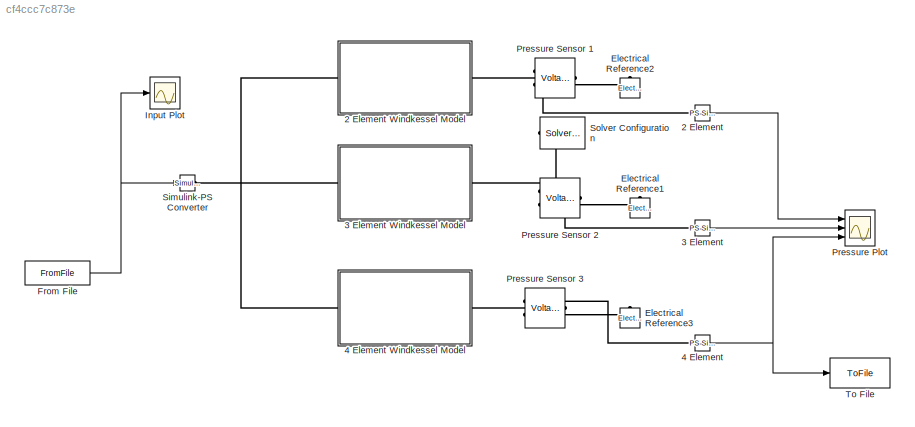
MODEL slx_cf4ccc7c873e
KIND model
CONFIG AbsTol = auto
CONFIG EnableMultiTasking = off
CONFIG FixedStep = 0.01
CONFIG MaxStep = auto
CONFIG MinStep = auto
CONFIG RelTol = 1e-3
CONFIG SampleTimeConstraint = Unconstrained
CONFIG Solver = ode4
CONFIG SolverName = ode4
CONFIG StartTime = 0.0
CONFIG StopTime = 16
BLOCK [Reference] 2 Element  REF=nesl_utility/PS-Simulink
Converter
  Ports = [0, 1, 0, 0, 0, 1]
  SourceBlock = nesl_utility/PS-Simulink\nConverter
  SourceProductBaseCode = SS
  SourceProductName = Simscape
  SourceType = PS-Simulink\nConverter
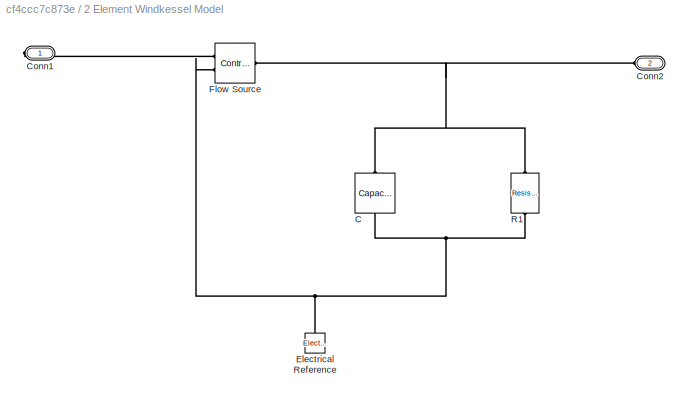
BLOCK [SubSystem] 2 Element Windkessel Model
  Ports = [0, 0, 0, 0, 0, 1, 1]
  RequestExecContextInheritance = off
BLOCK [Reference] 2 Element Windkessel Model/C  REF=ee_lib/Passive/Capacitor
  Ports = [0, 0, 0, 0, 0, 1, 1]
  SourceBlock = ee_lib/Passive/Capacitor
  SourceProductBaseCode = PS
  SourceProductName = Simscape Electrical
  SourceType = Capacitor
BLOCK [PMIOPort] 2 Element Windkessel Model/Conn1
  Side = Right
BLOCK [PMIOPort] 2 Element Windkessel Model/Conn2
  Port = 2
  Side = Left
BLOCK [Reference] 2 Element Windkessel Model/Electrical Reference  REF=fl_lib/Electrical/Electrical Elements/Electrical Reference
  Ports = [0, 0, 0, 0, 0, 1]
  SourceBlock = fl_lib/Electrical/Electrical Elements/Electrical Reference
  SourceProductBaseCode = SS
  SourceProductName = Simscape
  SourceType = Electrical Reference
BLOCK [Reference] 2 Element Windkessel Model/Flow Source  REF=fl_lib/Electrical/Electrical Sources/Controlled Current
Source
  Ports = [0, 0, 0, 0, 0, 1, 2]
  SourceBlock = fl_lib/Electrical/Electrical Sources/Controlled Current\nSource
  SourceProductBaseCode = SS
  SourceProductName = Simscape
  SourceType = Controlled Current\nSource
BLOCK [Reference] 2 Element Windkessel Model/R1  REF=fl_lib/Electrical/Electrical Elements/Resistor
  Ports = [0, 0, 0, 0, 0, 1, 1]
  SourceBlock = fl_lib/Electrical/Electrical Elements/Resistor
  SourceProductBaseCode = SS
  SourceProductName = Simscape
  SourceType = Resistor
BLOCK [Reference] 3 Element  REF=nesl_utility/PS-Simulink
Converter
  Ports = [0, 1, 0, 0, 0, 1]
  SourceBlock = nesl_utility/PS-Simulink\nConverter
  SourceProductBaseCode = SS
  SourceProductName = Simscape
  SourceType = PS-Simulink\nConverter
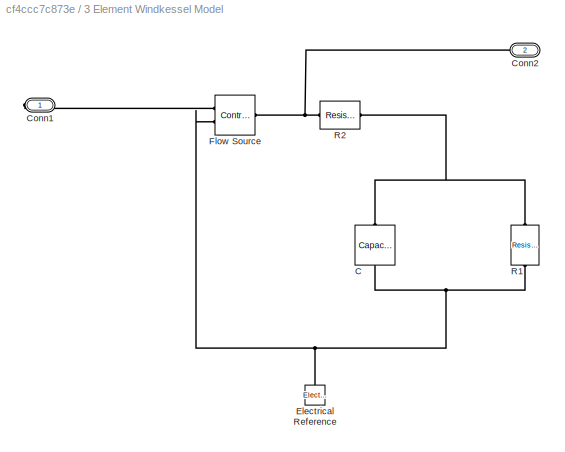
BLOCK [SubSystem] 3 Element Windkessel Model 
  Ports = [0, 0, 0, 0, 0, 1, 1]
  RequestExecContextInheritance = off
BLOCK [Reference] 3 Element Windkessel Model /C  REF=ee_lib/Passive/Capacitor
  Ports = [0, 0, 0, 0, 0, 1, 1]
  SourceBlock = ee_lib/Passive/Capacitor
  SourceProductBaseCode = PS
  SourceProductName = Simscape Electrical
  SourceType = Capacitor
BLOCK [PMIOPort] 3 Element Windkessel Model /Conn1
  Side = Right
BLOCK [PMIOPort] 3 Element Windkessel Model /Conn2
  Port = 2
  Side = Left
BLOCK [Reference] 3 Element Windkessel Model /Electrical Reference  REF=fl_lib/Electrical/Electrical Elements/Electrical Reference
  Ports = [0, 0, 0, 0, 0, 1]
  SourceBlock = fl_lib/Electrical/Electrical Elements/Electrical Reference
  SourceProductBaseCode = SS
  SourceProductName = Simscape
  SourceType = Electrical Reference
BLOCK [Reference] 3 Element Windkessel Model /Flow Source  REF=fl_lib/Electrical/Electrical Sources/Controlled Current
Source
  Ports = [0, 0, 0, 0, 0, 1, 2]
  SourceBlock = fl_lib/Electrical/Electrical Sources/Controlled Current\nSource
  SourceProductBaseCode = SS
  SourceProductName = Simscape
  SourceType = Controlled Current\nSource
BLOCK [Reference] 3 Element Windkessel Model /R1  REF=fl_lib/Electrical/Electrical Elements/Resistor
  Ports = [0, 0, 0, 0, 0, 1, 1]
  SourceBlock = fl_lib/Electrical/Electrical Elements/Resistor
  SourceProductBaseCode = SS
  SourceProductName = Simscape
  SourceType = Resistor
BLOCK [Reference] 3 Element Windkessel Model /R2  REF=fl_lib/Electrical/Electrical Elements/Resistor
  Ports = [0, 0, 0, 0, 0, 1, 1]
  SourceBlock = fl_lib/Electrical/Electrical Elements/Resistor
  SourceProductBaseCode = SS
  SourceProductName = Simscape
  SourceType = Resistor
BLOCK [Reference] 4 Element  REF=nesl_utility/PS-Simulink
Converter
  Ports = [0, 1, 0, 0, 0, 1]
  SourceBlock = nesl_utility/PS-Simulink\nConverter
  SourceProductBaseCode = SS
  SourceProductName = Simscape
  SourceType = PS-Simulink\nConverter
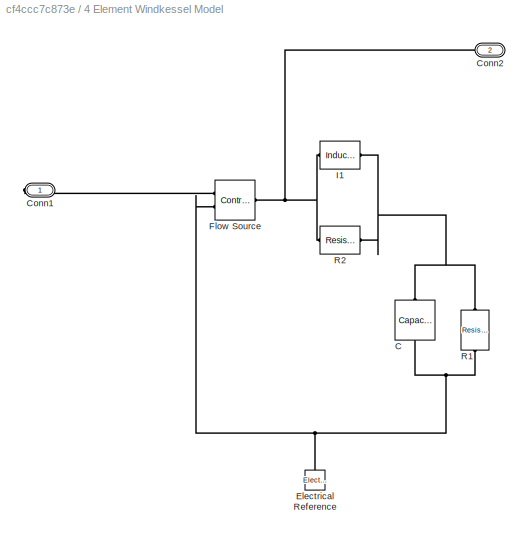
BLOCK [SubSystem] 4 Element Windkessel Model 
  Ports = [0, 0, 0, 0, 0, 1, 1]
  RequestExecContextInheritance = off
BLOCK [Reference] 4 Element Windkessel Model /C  REF=ee_lib/Passive/Capacitor
  Ports = [0, 0, 0, 0, 0, 1, 1]
  SourceBlock = ee_lib/Passive/Capacitor
  SourceProductBaseCode = PS
  SourceProductName = Simscape Electrical
  SourceType = Capacitor
BLOCK [PMIOPort] 4 Element Windkessel Model /Conn1
  Side = Right
BLOCK [PMIOPort] 4 Element Windkessel Model /Conn2
  Port = 2
  Side = Left
BLOCK [Reference] 4 Element Windkessel Model /Electrical Reference  REF=fl_lib/Electrical/Electrical Elements/Electrical Reference
  Ports = [0, 0, 0, 0, 0, 1]
  SourceBlock = fl_lib/Electrical/Electrical Elements/Electrical Reference
  SourceProductBaseCode = SS
  SourceProductName = Simscape
  SourceType = Electrical Reference
BLOCK [Reference] 4 Element Windkessel Model /Flow Source  REF=fl_lib/Electrical/Electrical Sources/Controlled Current
Source
  Ports = [0, 0, 0, 0, 0, 1, 2]
  SourceBlock = fl_lib/Electrical/Electrical Sources/Controlled Current\nSource
  SourceProductBaseCode = SS
  SourceProductName = Simscape
  SourceType = Controlled Current\nSource
BLOCK [Reference] 4 Element Windkessel Model /I1  REF=ee_lib/Passive/Inductor
  Ports = [0, 0, 0, 0, 0, 1, 1]
  SourceBlock = ee_lib/Passive/Inductor
  SourceProductBaseCode = PS
  SourceProductName = Simscape Electrical
  SourceType = Inductor
BLOCK [Reference] 4 Element Windkessel Model /R1  REF=fl_lib/Electrical/Electrical Elements/Resistor
  Ports = [0, 0, 0, 0, 0, 1, 1]
  SourceBlock = fl_lib/Electrical/Electrical Elements/Resistor
  SourceProductBaseCode = SS
  SourceProductName = Simscape
  SourceType = Resistor
BLOCK [Reference] 4 Element Windkessel Model /R2  REF=fl_lib/Electrical/Electrical Elements/Resistor
  Ports = [0, 0, 0, 0, 0, 1, 1]
  SourceBlock = fl_lib/Electrical/Electrical Elements/Resistor
  SourceProductBaseCode = SS
  SourceProductName = Simscape
  SourceType = Resistor
BLOCK [Reference] Electrical Reference1  REF=fl_lib/Electrical/Electrical Elements/Electrical Reference
  Ports = [0, 0, 0, 0, 0, 1]
  SourceBlock = fl_lib/Electrical/Electrical Elements/Electrical Reference
  SourceProductBaseCode = SS
  SourceProductName = Simscape
  SourceType = Electrical Reference
BLOCK [Reference] Electrical Reference2  REF=fl_lib/Electrical/Electrical Elements/Electrical Reference
  Ports = [0, 0, 0, 0, 0, 1]
  SourceBlock = fl_lib/Electrical/Electrical Elements/Electrical Reference
  SourceProductBaseCode = SS
  SourceProductName = Simscape
  SourceType = Electrical Reference
BLOCK [Reference] Electrical Reference3  REF=fl_lib/Electrical/Electrical Elements/Electrical Reference
  Ports = [0, 0, 0, 0, 0, 1]
  SourceBlock = fl_lib/Electrical/Electrical Elements/Electrical Reference
  SourceProductBaseCode = SS
  SourceProductName = Simscape
  SourceType = Electrical Reference
BLOCK [FromFile] From File
  FileName = inflow.mat
  SampleTime = 0
BLOCK [Scope] Input Plot
  Floating = off
  NumInputPorts = 1
  Ports = [1]
  ScopeSpecificationString = Simulink.scopes.TimeScopeBlockCfg('CurrentConfiguration', extmgr.ConfigurationSet(extmgr.Configuration('Core','General UI',true),extmgr.Configuration('Core','Source UI',true),extmgr.Configuration('Sources','WiredSimulink',true,'DataLoggingVariableName','ScopeData1'),extmgr.Configuration('Visuals','Time Domain',true,'SerializedDisplays',{struct('MinYLimReal','-62.5','MaxYLimReal','562.5','YLabelRea...<+1387ch>
BLOCK [Scope] Pressure Plot
  Floating = off
  NumInputPorts = 3
  Ports = [3]
  ScopeSpecificationString = Simulink.scopes.TimeScopeBlockCfg('CurrentConfiguration', extmgr.ConfigurationSet(extmgr.Configuration('Core','General UI',true),extmgr.Configuration('Core','Source UI',true),extmgr.Configuration('Sources','WiredSimulink',true),extmgr.Configuration('Visuals','Time Domain',true,'SerializedDisplays',{struct('MinYLimReal','-16.85355','MaxYLimReal','151.68192','YLabelReal','','MinYLimMag','0.00000','M...<+1727ch>
BLOCK [Reference] Pressure Sensor 1   REF=fl_lib/Electrical/Electrical Sensors/Voltage Sensor
  Ports = [0, 0, 0, 0, 0, 1, 2]
  SourceBlock = fl_lib/Electrical/Electrical Sensors/Voltage Sensor
  SourceProductBaseCode = SS
  SourceProductName = Simscape
  SourceType = Voltage Sensor
BLOCK [Reference] Pressure Sensor 2  REF=fl_lib/Electrical/Electrical Sensors/Voltage Sensor
  Ports = [0, 0, 0, 0, 0, 1, 2]
  SourceBlock = fl_lib/Electrical/Electrical Sensors/Voltage Sensor
  SourceProductBaseCode = SS
  SourceProductName = Simscape
  SourceType = Voltage Sensor
BLOCK [Reference] Pressure Sensor 3  REF=fl_lib/Electrical/Electrical Sensors/Voltage Sensor
  Ports = [0, 0, 0, 0, 0, 1, 2]
  SourceBlock = fl_lib/Electrical/Electrical Sensors/Voltage Sensor
  SourceProductBaseCode = SS
  SourceProductName = Simscape
  SourceType = Voltage Sensor
BLOCK [Reference] Simulink-PS Converter  REF=nesl_utility/Simulink-PS
Converter
  Ports = [1, 0, 0, 0, 0, 0, 1]
  SourceBlock = nesl_utility/Simulink-PS\nConverter
  SourceProductBaseCode = SS
  SourceProductName = Simscape
  SourceType = Simulink-PS\nConverter
BLOCK [Reference] Solver Configuration  REF=nesl_utility/Solver
Configuration
  Ports = [0, 0, 0, 0, 0, 0, 1]
  SourceBlock = nesl_utility/Solver\nConfiguration
  SourceProductBaseCode = SS
  SourceProductName = Simscape
  SourceType = Solver\nConfiguration
BLOCK [ToFile] To File
  Filename = Pressure.mat
  Ports = [1]
  SaveFormat = Timeseries
LINE 2 Element:1 -> Pressure Plot:1
LINE 3 Element:1 -> Pressure Plot:2
NET 4 Element:1 -> Pressure Plot:3, To File:1
NET From File:1 -> Input Plot:1, Simulink-PS Converter:1
PNET net1: 2 Element Windkessel Model/C:LConn1 -- 2 Element Windkessel Model/Electrical Reference:LConn1 -- 2 Element Windkessel Model/Flow Source:RConn2 -- 2 Element Windkessel Model/R1:LConn1
PNET net2: 2 Element Windkessel Model/C:RConn1 -- 2 Element Windkessel Model/Conn2:RConn1 -- 2 Element Windkessel Model/Flow Source:LConn1 -- 2 Element Windkessel Model/R1:RConn1
PLINE 2 Element Windkessel Model/Conn1:RConn1 -- 2 Element Windkessel Model/Flow Source:RConn1
PLINE 2 Element Windkessel Model:LConn1 -- Pressure Sensor 1 :LConn1
PNET net3: 2 Element Windkessel Model:RConn1 -- 3 Element Windkessel Model :RConn1 -- 4 Element Windkessel Model :RConn1 -- Simulink-PS Converter:RConn1
PLINE 2 Element:LConn1 -- Pressure Sensor 1 :RConn1
PNET net4: 3 Element Windkessel Model /C:LConn1 -- 3 Element Windkessel Model /Electrical Reference:LConn1 -- 3 Element Windkessel Model /Flow Source:RConn2 -- 3 Element Windkessel Model /R1:LConn1
PNET net5: 3 Element Windkessel Model /C:RConn1 -- 3 Element Windkessel Model /R1:RConn1 -- 3 Element Windkessel Model /R2:RConn1
PLINE 3 Element Windkessel Model /Conn1:RConn1 -- 3 Element Windkessel Model /Flow Source:RConn1
PNET net6: 3 Element Windkessel Model /Conn2:RConn1 -- 3 Element Windkessel Model /Flow Source:LConn1 -- 3 Element Windkessel Model /R2:LConn1
PNET net7: 3 Element Windkessel Model :LConn1 -- Pressure Sensor 2:LConn1 -- Solver Configuration:RConn1
PLINE 3 Element:LConn1 -- Pressure Sensor 2:RConn1
PNET net8: 4 Element Windkessel Model /C:LConn1 -- 4 Element Windkessel Model /Electrical Reference:LConn1 -- 4 Element Windkessel Model /Flow Source:RConn2 -- 4 Element Windkessel Model /R1:LConn1
PNET net9: 4 Element Windkessel Model /C:RConn1 -- 4 Element Windkessel Model /I1:RConn1 -- 4 Element Windkessel Model /R1:RConn1 -- 4 Element Windkessel Model /R2:RConn1
PLINE 4 Element Windkessel Model /Conn1:RConn1 -- 4 Element Windkessel Model /Flow Source:RConn1
PNET net10: 4 Element Windkessel Model /Conn2:RConn1 -- 4 Element Windkessel Model /Flow Source:LConn1 -- 4 Element Windkessel Model /I1:LConn1 -- 4 Element Windkessel Model /R2:LConn1
PLINE 4 Element Windkessel Model :LConn1 -- Pressure Sensor 3:LConn1
PLINE 4 Element:LConn1 -- Pressure Sensor 3:RConn1
PLINE Electrical Reference1:LConn1 -- Pressure Sensor 2:RConn2
PLINE Electrical Reference2:LConn1 -- Pressure Sensor 1 :RConn2
PLINE Electrical Reference3:LConn1 -- Pressure Sensor 3:RConn2
note: NET lines group one-source signal fan-out (src -> all destinations, sorted); 1:1 wires keep LINE; PNET lines group multi-terminal physical nets as a canonical sorted terminal list (undirected conserving connections); 2-terminal nets keep the pairwise PLINE form
